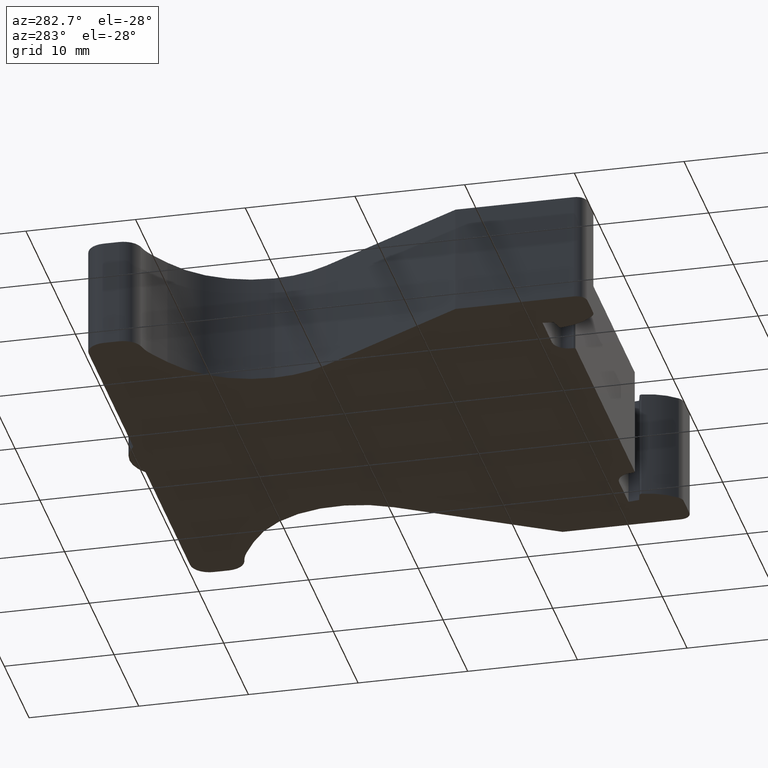
[diagram: clean part render]
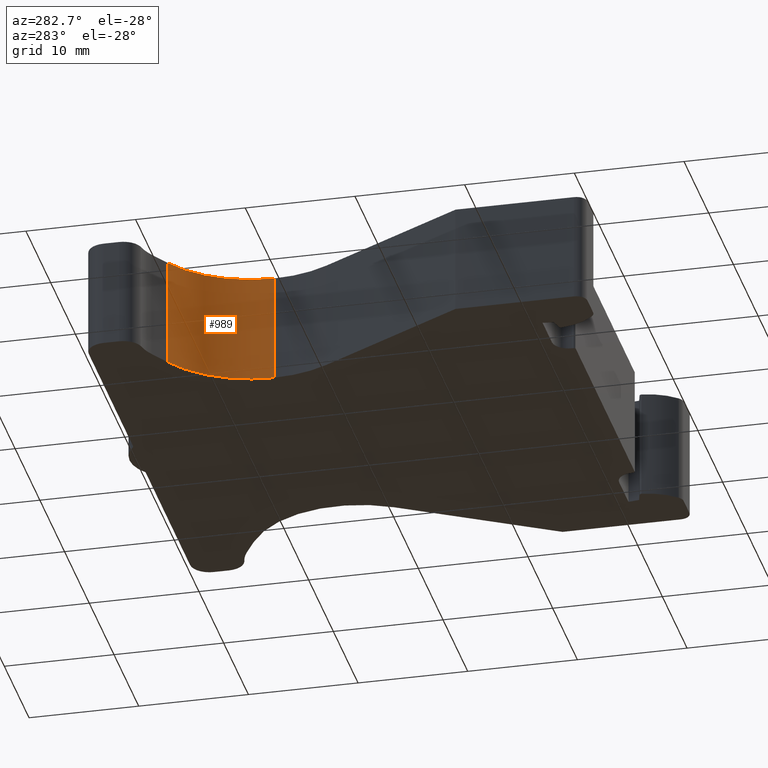
[diagram: same view with one face highlighted and labeled with its STEP entity id]
A machine part, auxiliary view. The second image highlights one B-rep face of the part: STEP entity #989.
In plain terms, the highlighted cylindrical surface (partial cylindrical patch) has radius 10 mm, axis along (0, 0, 1).
Its self-contained STEP definition (entity closure, byte-faithful):
#74 = ORIENTED_EDGE ( 'NONE', *, *, #912, .F. ) ;
#114 = EDGE_LOOP ( 'NONE', ( #177, #175, #120, #74 ) ) ;
#120 = ORIENTED_EDGE ( 'NONE', *, *, #934, .T. ) ;
#175 = ORIENTED_EDGE ( 'NONE', *, *, #915, .T. ) ;
#177 = ORIENTED_EDGE ( 'NONE', *, *, #932, .T. ) ;
#381 = VERTEX_POINT ( 'NONE', #540 ) ;
#391 = VERTEX_POINT ( 'NONE', #547 ) ;
#423 = VERTEX_POINT ( 'NONE', #533 ) ;
#426 = VERTEX_POINT ( 'NONE', #509 ) ;
#509 = CARTESIAN_POINT ( 'NONE',  ( 1758.734703294374900, 583.5847439342931000, 10.00000000000000000 ) ) ;
#533 = CARTESIAN_POINT ( 'NONE',  ( 1758.734703294374900, 583.5847439342931000, 0.0000000000000000000 ) ) ;
#540 = CARTESIAN_POINT ( 'NONE',  ( 1763.734703294375500, 574.9244898964481100, 0.0000000000000000000 ) ) ;
#547 = CARTESIAN_POINT ( 'NONE',  ( 1763.734703294375500, 574.9244898964481100, 10.00000000000000000 ) ) ;
#694 = FACE_OUTER_BOUND ( 'NONE', #114, .T. ) ;
#718 = DIRECTION ( 'NONE',  ( 1.000000000000000000, 0.0000000000000000000, 0.0000000000000000000 ) ) ;
#725 = CYLINDRICAL_SURFACE ( 'NONE', #1163, 10.00000000000023100 ) ;
#727 = DIRECTION ( 'NONE',  ( 0.0000000000000000000, 0.0000000000000000000, 1.000000000000000000 ) ) ;
#737 = CARTESIAN_POINT ( 'NONE',  ( 1753.734703294374900, 574.9244898964481100, -27.74572169787794700 ) ) ;
#912 = EDGE_CURVE ( 'NONE', #423, #426, #1438, .T. ) ;
#915 = EDGE_CURVE ( 'NONE', #381, #391, #1414, .T. ) ;
#932 = EDGE_CURVE ( 'NONE', #423, #381, #1115, .T. ) ;
#934 = EDGE_CURVE ( 'NONE', #391, #426, #1110, .T. ) ;
#989 = ADVANCED_FACE ( 'NONE', ( #694 ), #725, .F. ) ;
#1089 = AXIS2_PLACEMENT_3D ( 'NONE', #1535, #1504, #1509 ) ;
#1091 = AXIS2_PLACEMENT_3D ( 'NONE', #1538, #1527, #1537 ) ;
#1101 = VECTOR ( 'NONE', #1417, 1000.000000000000000 ) ;
#1110 = CIRCLE ( 'NONE', #1089, 10.00000000000067500 ) ;
#1115 = CIRCLE ( 'NONE', #1091, 10.00000000000067500 ) ;
#1123 = VECTOR ( 'NONE', #1431, 1000.000000000000000 ) ;
#1163 = AXIS2_PLACEMENT_3D ( 'NONE', #737, #727, #718 ) ;
#1404 = CARTESIAN_POINT ( 'NONE',  ( 1758.734703294374900, 583.5847439342929900, -27.74572169787794700 ) ) ;
#1414 = LINE ( 'NONE', #1415, #1101 ) ;
#1415 = CARTESIAN_POINT ( 'NONE',  ( 1763.734703294375100, 574.9244898964481100, -27.74572169787794700 ) ) ;
#1417 = DIRECTION ( 'NONE',  ( 0.0000000000000000000, 0.0000000000000000000, 1.000000000000000000 ) ) ;
#1431 = DIRECTION ( 'NONE',  ( 0.0000000000000000000, 0.0000000000000000000, 1.000000000000000000 ) ) ;
#1438 = LINE ( 'NONE', #1404, #1123 ) ;
#1504 = DIRECTION ( 'NONE',  ( -0.0000000000000000000, 0.0000000000000000000, 1.000000000000000000 ) ) ;
#1509 = DIRECTION ( 'NONE',  ( 1.000000000000000000, 0.0000000000000000000, 0.0000000000000000000 ) ) ;
#1527 = DIRECTION ( 'NONE',  ( -0.0000000000000000000, -0.0000000000000000000, -1.000000000000000000 ) ) ;
#1535 = CARTESIAN_POINT ( 'NONE',  ( 1753.734703294374900, 574.9244898964481100, 10.00000000000000000 ) ) ;
#1537 = DIRECTION ( 'NONE',  ( 1.000000000000000000, 0.0000000000000000000, 0.0000000000000000000 ) ) ;
#1538 = CARTESIAN_POINT ( 'NONE',  ( 1753.734703294374900, 574.9244898964481100, 0.0000000000000000000 ) ) ;